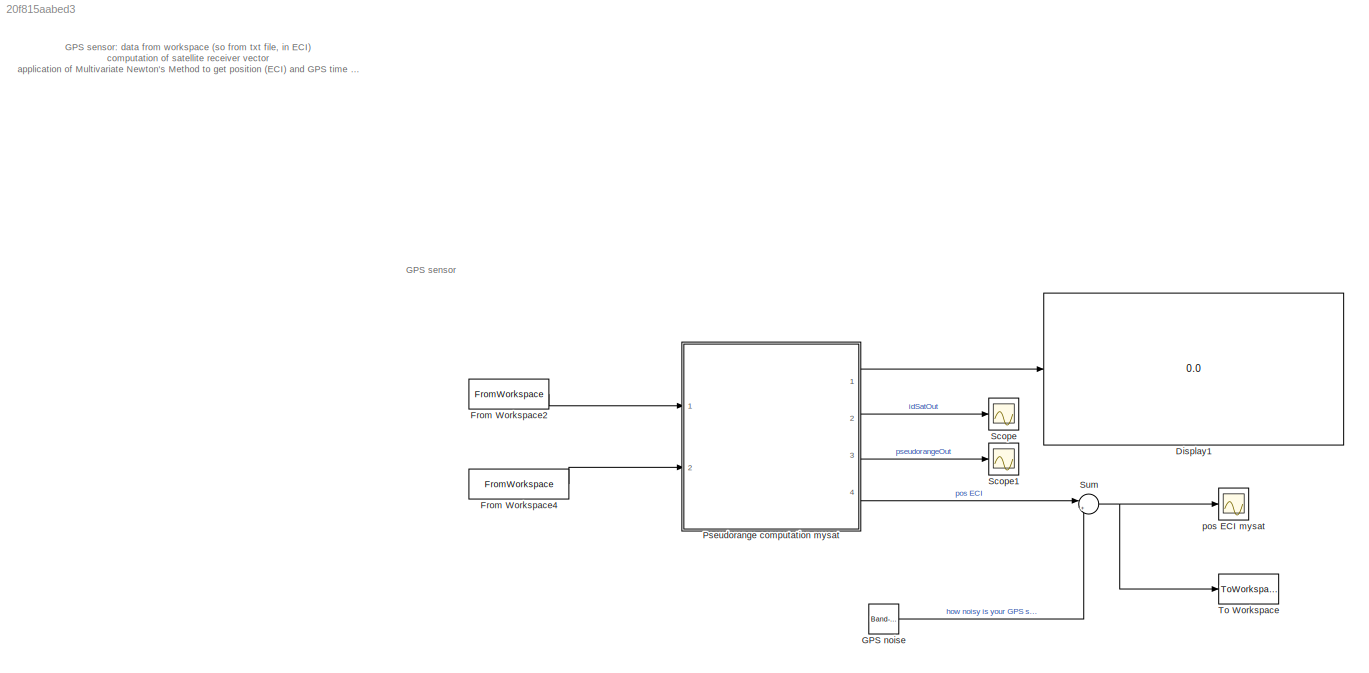
MODEL slx_20f815aabed3
KIND model
CONFIG AbsTol = auto
CONFIG EnableMultiTasking = off
CONFIG FixedStep = auto
CONFIG MaxStep = 1
CONFIG MinStep = 1
CONFIG RelTol = 1e-3
CONFIG SampleTimeConstraint = Unconstrained
CONFIG Solver = VariableStepAuto
CONFIG SolverName = VariableStepAuto
CONFIG StartTime = 0.0
CONFIG StopTime = 5600
BLOCK [Display] Display1
  Decimation = 1
  Ports = [1]
BLOCK [FromWorkspace] From Workspace2
  VariableName = gps_gmat_interp
BLOCK [FromWorkspace] From Workspace4
  VariableName = mysat_gmat_interp
BLOCK [Reference] GPS noise  REF=simulink/Sources/Band-Limited
White Noise
  Ports = [0, 1]
  SourceBlock = simulink/Sources/Band-Limited\nWhite Noise
  SourceProductBaseCode = SL
  SourceType = Band-Limited White Noise.
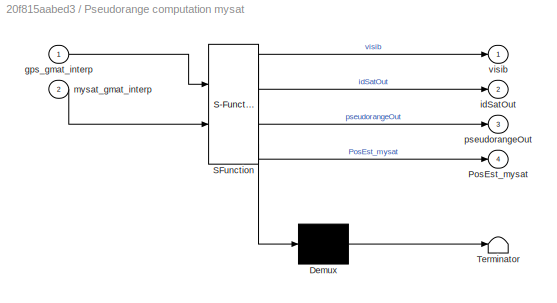
BLOCK [SubSystem] Pseudorange computation mysat
  ErrorFcn = Stateflow.Translate.translate
  PermitHierarchicalResolution = ExplicitOnly
  Ports = [2, 4]
  RequestExecContextInheritance = off
  SFBlockType = MATLAB Function
  TreatAsAtomicUnit = on
BLOCK [Demux] Pseudorange computation mysat/ Demux 
  Outputs = 1
  Ports = [1, 1]
BLOCK [S-Function] Pseudorange computation mysat/ SFunction 
  EnableBusSupport = on
  FunctionName = sf_sfun
  PortCounts = [2 5]
  Ports = [2, 5]
  SFcnIsStateOwnerBlock = off
  SFunctionDeploymentMode = off
  Tag = Stateflow S-Function 1
BLOCK [Terminator] Pseudorange computation mysat/ Terminator 
BLOCK [Outport] Pseudorange computation mysat/PosEst_mysat
  Port = 4
  VectorParamsAs1DForOutWhenUnconnected = off
BLOCK [Inport] Pseudorange computation mysat/gps_gmat_interp
BLOCK [Outport] Pseudorange computation mysat/idSatOut
  Port = 2
  VectorParamsAs1DForOutWhenUnconnected = off
BLOCK [Inport] Pseudorange computation mysat/mysat_gmat_interp
  Port = 2
BLOCK [Outport] Pseudorange computation mysat/pseudorangeOut
  Port = 3
  VectorParamsAs1DForOutWhenUnconnected = off
BLOCK [Outport] Pseudorange computation mysat/visib
  VectorParamsAs1DForOutWhenUnconnected = off
BLOCK [Scope] Scope
  Floating = off
  NumInputPorts = 1
  Ports = [1]
  ScopeSpecificationString = Simulink.scopes.TimeScopeBlockCfg('CurrentConfiguration', extmgr.ConfigurationSet(extmgr.Configuration('Core','General UI',true),extmgr.Configuration('Core','Source UI',true),extmgr.Configuration('Sources','WiredSimulink',true,'DataLoggingVariableName','ScopeData1'),extmgr.Configuration('Visuals','Time Domain',true,'SerializedDisplays',{struct('MinYLimReal','-1.00000','MaxYLimReal','19.00000','YLa...<+1537ch>
BLOCK [Scope] Scope1
  Floating = off
  NumInputPorts = 1
  Ports = [1]
  ScopeSpecificationString = Simulink.scopes.TimeScopeBlockCfg('CurrentConfiguration', extmgr.ConfigurationSet(extmgr.Configuration('Core','General UI',true),extmgr.Configuration('Core','Source UI',true),extmgr.Configuration('Sources','WiredSimulink',true,'DataLoggingVariableName','ScopeData2'),extmgr.Configuration('Visuals','Time Domain',true,'SerializedDisplays',{struct('MinYLimReal','19121.92169','MaxYLimReal','25711.33092...<+1616ch>
BLOCK [Sum] Sum
  Inputs = |++
  Ports = [2, 1]
BLOCK [ToWorkspace] To Workspace
  MaxDataPoints = inf
  Ports = [1]
  SampleTime = -1
  SaveFormat = Timeseries
  VariableName = PosEst_mysat
BLOCK [Scope] pos ECI mysat
  Floating = off
  NumInputPorts = 1
  Ports = [1]
  ScopeSpecificationString = Simulink.scopes.TimeScopeBlockCfg('CurrentConfiguration', extmgr.ConfigurationSet(extmgr.Configuration('Core','General UI',true),extmgr.Configuration('Core','Source UI',true),extmgr.Configuration('Sources','WiredSimulink',true,'DataLoggingVariableName','ScopeData2'),extmgr.Configuration('Visuals','Time Domain',true,'SerializedDisplays',{struct('MinYLimReal','-8766.8651','MaxYLimReal','8800.74525',...<+1576ch>
ANNOTATION (root): GPS sensor: data from workspace (so from txt file, in ECI) computation of satellite receiver vector application of Multivariate Newton's Method to get position (ECI) and GPS time offset
ANNOTATION (root): GPS sensor
LINE From Workspace2:1 -> Pseudorange computation mysat:1
LINE From Workspace4:1 -> Pseudorange computation mysat:2
LINE GPS noise:1 -> Sum:2
LINE Pseudorange computation mysat:1 -> Display1:1
LINE Pseudorange computation mysat:2 -> Scope:1
LINE Pseudorange computation mysat:3 -> Scope1:1
LINE Pseudorange computation mysat:4 -> Sum:1
NET Sum:1 -> To Workspace:1, pos ECI mysat:1
note: NET lines group one-source signal fan-out (src -> all destinations, sorted); 1:1 wires keep LINE
CHART Pseudorange computation mysat states=1 transitions=1
  STATE_LABEL 'eML_blk_kernel()'
  STATE_LABEL 'SCRIPT:\nfunction [visib, idSatOut, pseudorangeOut, PosEst_mysat]   = fcn(gps_gmat_interp, mysat_gmat_interp)\n\ntotsat=24; % satellites in gps constellation\nc=299792.458; %speed of light [km/s]\n\nnumsat = 0; % number of visible satellite\nvisib = zeros(1,totsat); % visibility vector\ndist = zeros(1,totsat); % distance from gps satellite to mysat\nelev = zeros(1,totsat); % gps satellite elevation\npseudor...<+2848ch>'
CHART  states=0 transitions=0
